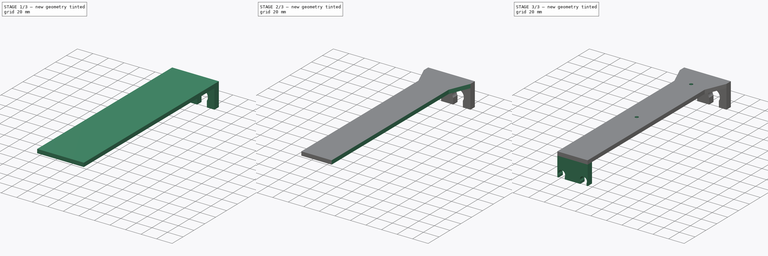
[diagram: build sequence overview — one tinted view per stage of 3, left to right]
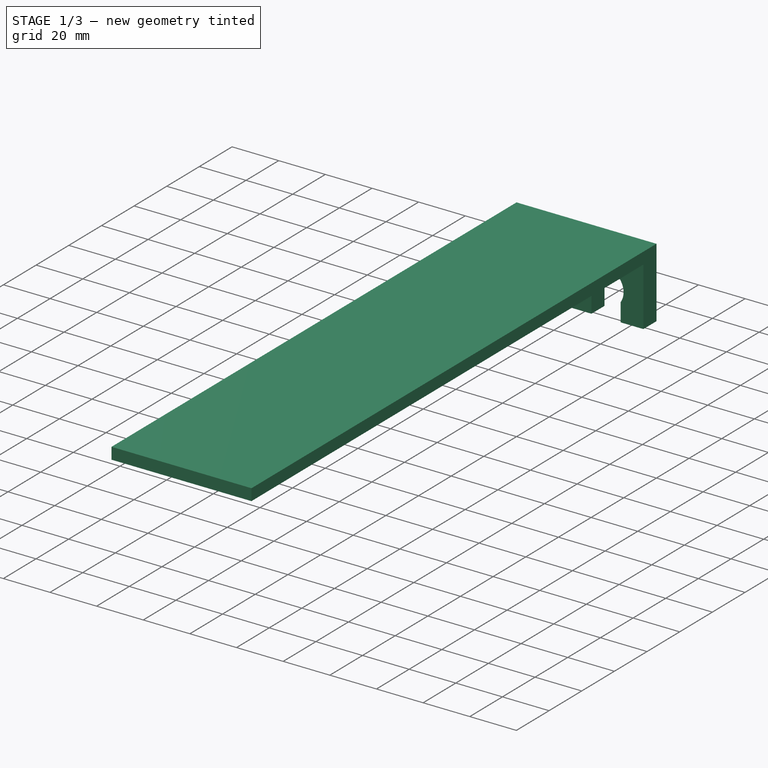
[diagram: stage 1 of 3 — iso view after this stage's code; geometry added in this stage tinted green]
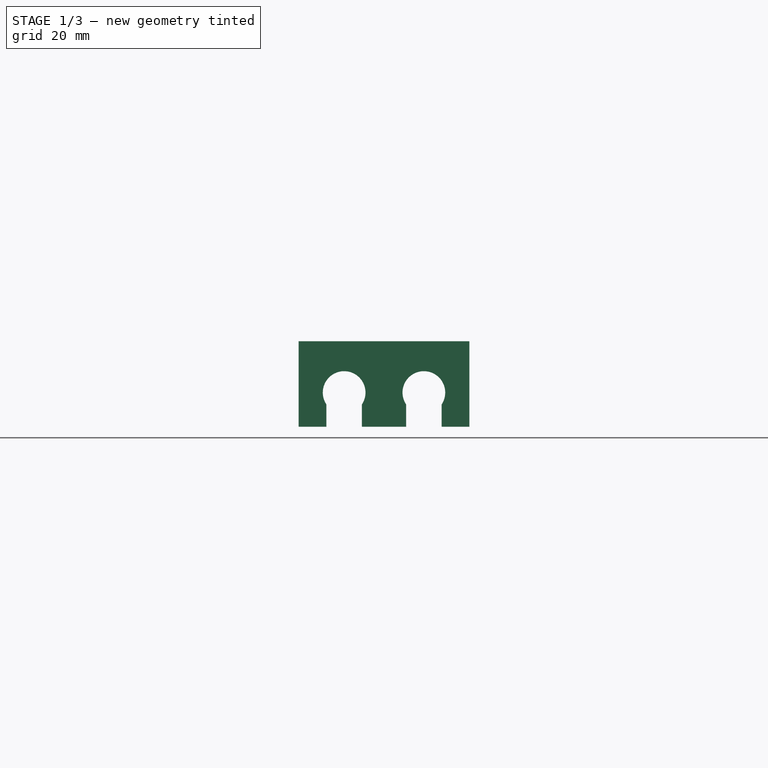
[diagram: stage 1 of 3 — front view after this stage's code; geometry added in this stage tinted green]
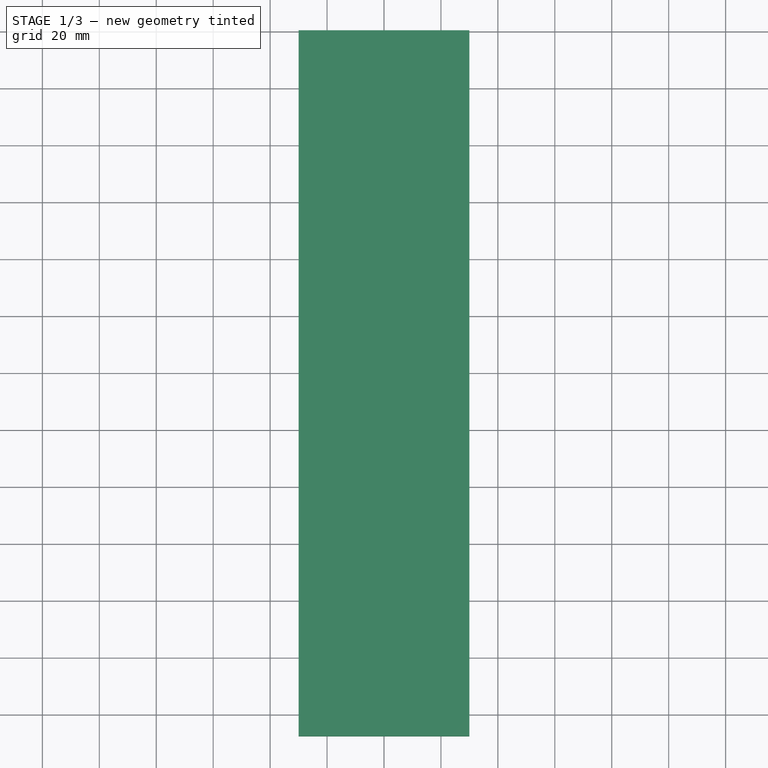
[diagram: stage 1 of 3 — top view after this stage's code; geometry added in this stage tinted green]
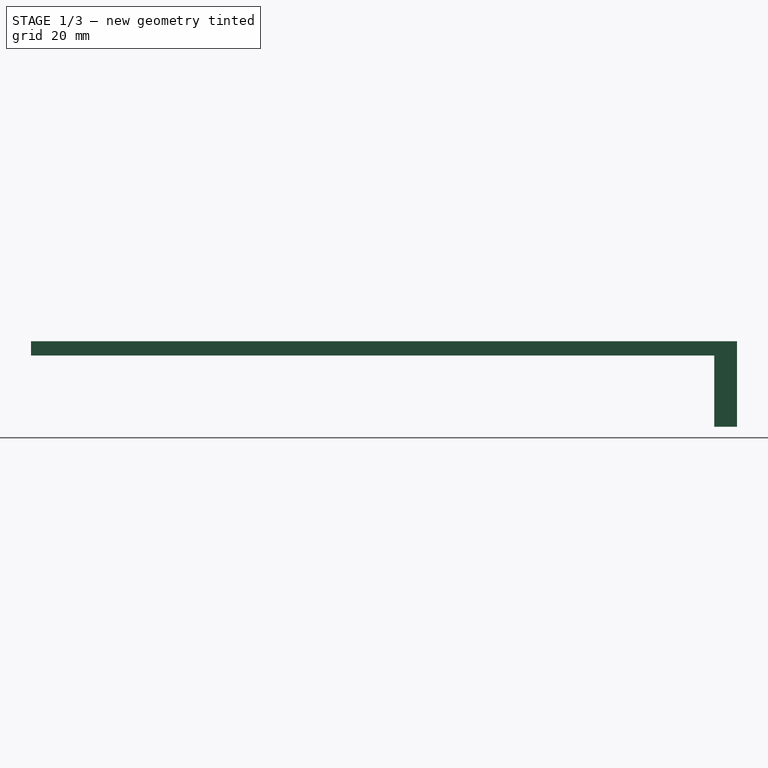
[diagram: stage 1 of 3 — right view after this stage's code; geometry added in this stage tinted green]
FCSTD DOCUMENT  (FreeCAD 0.18R4 (GitTag))
Label: soporte_dremel_extension
License: All rights reserved
LicenseURL: http://en.wikipedia.org/wiki/All_rights_reserved
objects: Sketcher::SketchObject×6, PartDesign::Pad×3, PartDesign::Pocket×2, PartDesign::Hole×1, PartDesign::Body×1, Part::FeaturePython×1, App::FeaturePython×1
note: 20 computed .brp shape members not serialized (recipe doc carries the construction recipe); baked Part::Feature solids carry a one-line shape summary decoded from their .brp

FEATURE [Sketcher::SketchObject] Sketch
  MapMode = 5
  Placement = pos=(0,0,0) rot=(1,0,0;1.5708rad)
  Support = -> [XZ_Plane]
  sketch-geometry (15):
    g0: LineSegment StartX=-30 StartY=0 StartZ=0 EndX=30 EndY=0 EndZ=0
    g1: LineSegment StartX=30 StartY=0 StartZ=0 EndX=30 EndY=-30 EndZ=0
    g2: LineSegment StartX=30 StartY=-30 StartZ=0 EndX=20.25 EndY=-30 EndZ=0
    g3: LineSegment StartX=-30 StartY=-30 StartZ=0 EndX=-30 EndY=0 EndZ=0
    g4: LineSegment [constr] StartX=-14 StartY=12 StartZ=0 EndX=-14 EndY=-48 EndZ=0
    g5: LineSegment [constr] StartX=14 StartY=12 StartZ=0 EndX=14 EndY=-48 EndZ=0
    g6: ArcOfCircle CenterX=-14 CenterY=-18 CenterZ=0 NormalX=0 NormalY=0 NormalZ=1 AngleXU=0 Radius=7.5 StartAngle=5.6975 EndAngle=10.0105
    g7: ArcOfCircle CenterX=14 CenterY=-18 CenterZ=0 NormalX=0 NormalY=0 NormalZ=1 AngleXU=0 Radius=7.5 StartAngle=5.6975 EndAngle=10.0105
    g8: Circle [constr] CenterX=-14 CenterY=-18 CenterZ=0 NormalX=0 NormalY=0 NormalZ=1 AngleXU=0 Radius=11
    g9: LineSegment StartX=-20.25 StartY=-22.1458 StartZ=0 EndX=-20.25 EndY=-30 EndZ=0
    g10: LineSegment StartX=-7.75 StartY=-22.1458 StartZ=0 EndX=-7.75 EndY=-30 EndZ=0
    g11: LineSegment StartX=7.75 StartY=-22.1458 StartZ=0 EndX=7.75 EndY=-30 EndZ=0
    g12: LineSegment StartX=20.25 StartY=-22.1458 StartZ=0 EndX=20.25 EndY=-30 EndZ=0
    g13: LineSegment StartX=-20.25 StartY=-30 StartZ=0 EndX=-30 EndY=-30 EndZ=0
    g14: LineSegment StartX=7.75 StartY=-30 StartZ=0 EndX=-7.75 EndY=-30 EndZ=0
  constraints (42):
    c: Coincident(g0,g1)
    c: Coincident(g1,g2)
    c: Coincident(g13,g3)
    c: Coincident(g3,g0)
    c: Horizontal(g0)
    c: Horizontal(g2)
    c: Vertical(g1)
    c: Vertical(g3)
    c: Symmetric(g0,g0,g-1)
    c: DistanceX(g0,g0) = 60
    c: DistanceY(g3,g3) = 30
    c: Vertical(g4)
    c: Vertical(g5)
    c: Symmetric(g4,g5,g-2)
    c: DistanceX(g4,g5) = 28
    c: Equal(g4,g5)
    c: DistanceY(g5,g5) = 60
    c: DistanceY(g-1,g5) = 12
    c: Diameter(g6) = 15
    c: Equal(g6,g7)
    c: DistanceY(g13,g6) = 12
    c: Coincident(g8,g6)
    c: Diameter(g8) = 22
    c: DistanceY(g7,g6) = 0
    c: Vertical(g9)
    c: Vertical(g10)
    c: Vertical(g11)
    c: Vertical(g12)
    c: Coincident(g9,g6)
    c: Coincident(g10,g6)
    c: Coincident(g13,g9)
    c: Tangent(g2,g13)
    c: Coincident(g10,g14)
    c: Coincident(g14,g11)
    c: Tangent(g2,g14)
    c: Coincident(g11,g7)
    c: Coincident(g7,g12)
    c: Coincident(g12,g2)
    c: Symmetric(g6,g6,g4)
    c: DistanceX(g6,g6) = 12.5
    c: Symmetric(g7,g7,g5)
    c: DistanceX(g7,g7) = 12.5
FEATURE [PartDesign::Pad] Pad
  Length = 8
  Length2 = 100
  Placement = pos=(0,0,0) rot=(1,0,0;1.5708rad)
  Profile = -> Sketch
  Type = 0
FEATURE [Sketcher::SketchObject] Sketch001
  ExternalGeometry = -> [Pad]
  MapMode = 5
  Placement = pos=(0,-8,5.3e-15) rot=(1,0,0;1.5708rad)
  Support = -> [Pad]
  sketch-geometry (4):
    g0: LineSegment StartX=-30 StartY=0 StartZ=0 EndX=30 EndY=0 EndZ=0
    g1: LineSegment StartX=30 StartY=0 StartZ=0 EndX=30 EndY=-5 EndZ=0
    g2: LineSegment StartX=30 StartY=-5 StartZ=0 EndX=-30 EndY=-5 EndZ=0
    g3: LineSegment StartX=-30 StartY=-5 StartZ=0 EndX=-30 EndY=0 EndZ=0
  constraints (10):
    c: Coincident(g0,g1)
    c: Coincident(g1,g2)
    c: Coincident(g2,g3)
    c: Coincident(g3,g0)
    c: Horizontal(g2)
    c: Vertical(g1)
    c: Vertical(g3)
    c: Coincident(g0,g-5)
    c: Coincident(g0,g-5)
    c: DistanceY(g3,g3) = 5
FEATURE [PartDesign::Pad] Pad001
  BaseFeature = -> Pad
  Length = 240
  Length2 = 100
  Placement = pos=(0,0,0) rot=(1,0,0;1.5708rad)
  Profile = -> Sketch001
  Type = 0
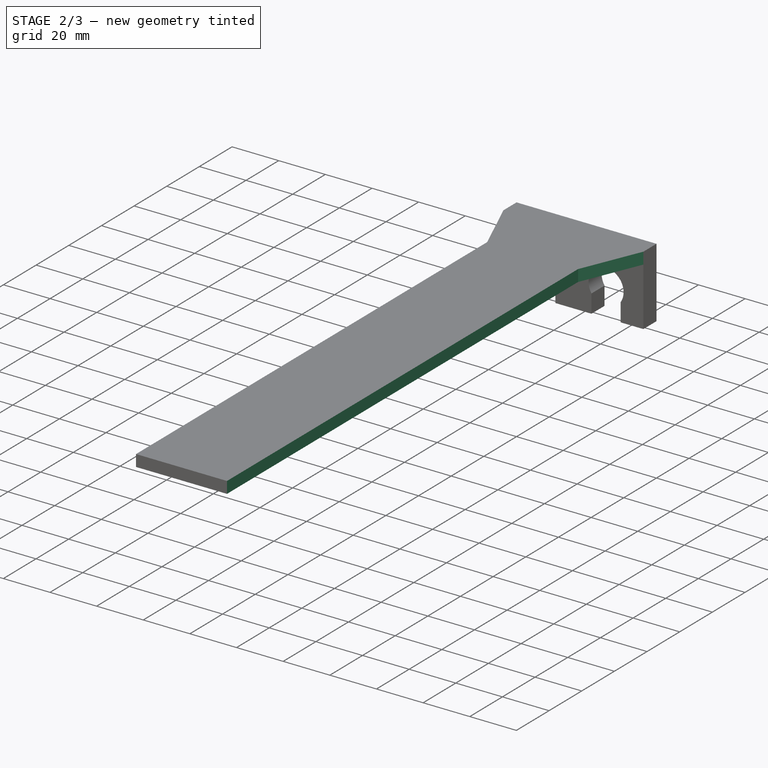
[diagram: stage 2 of 3 — iso view after this stage's code; geometry added in this stage tinted green]
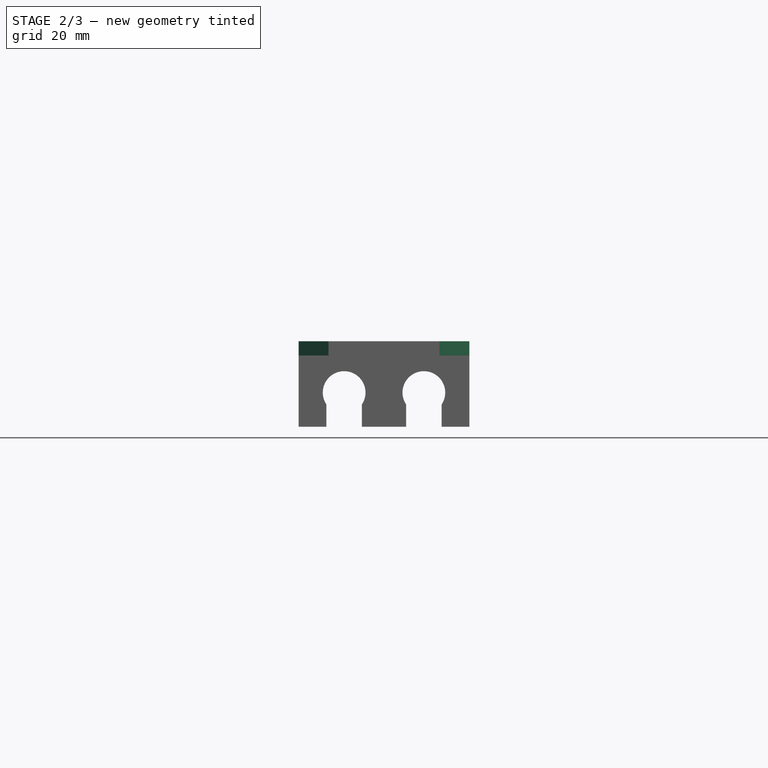
[diagram: stage 2 of 3 — front view after this stage's code; geometry added in this stage tinted green]
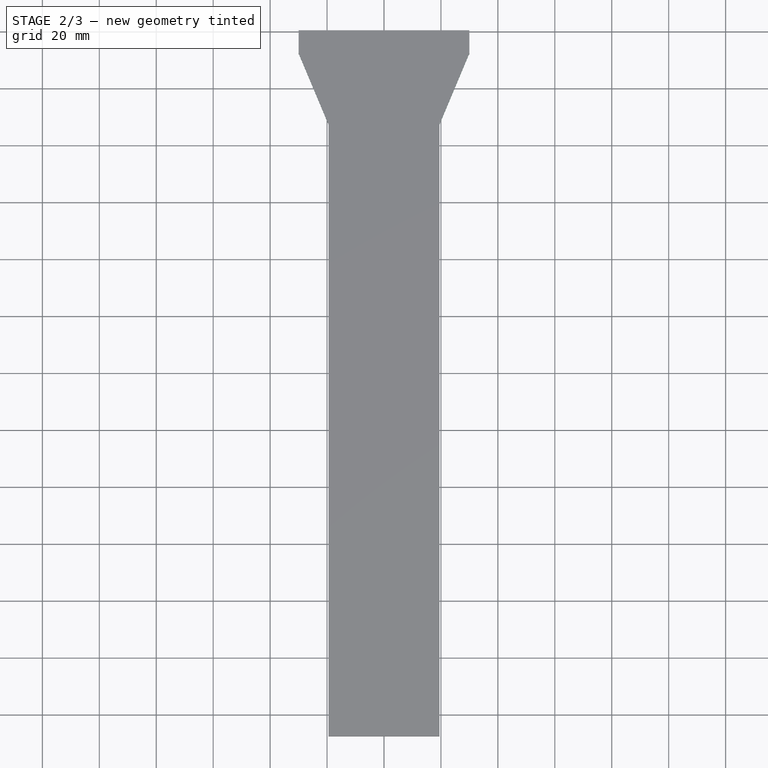
[diagram: stage 2 of 3 — top view after this stage's code; geometry added in this stage tinted green]
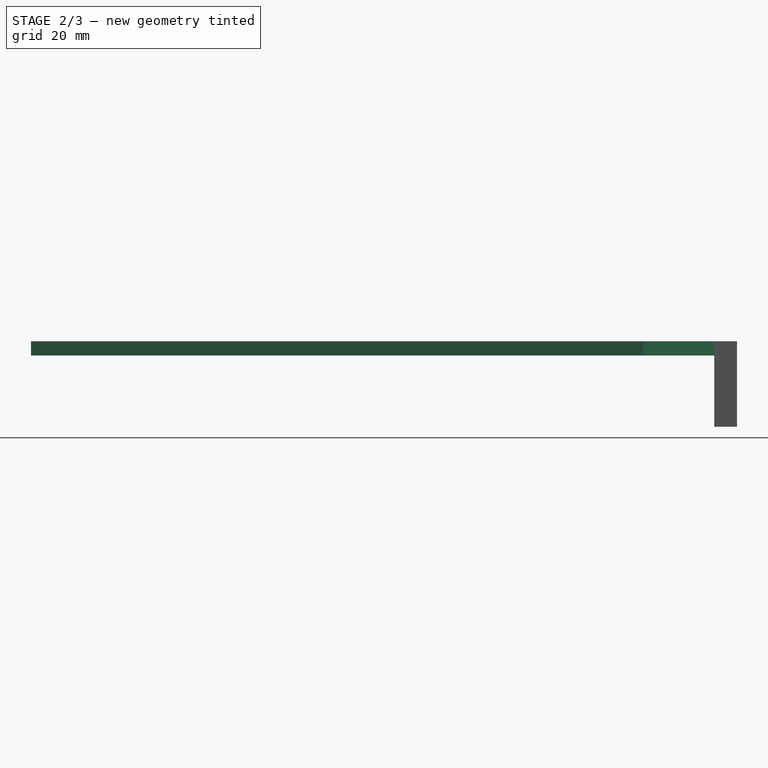
[diagram: stage 2 of 3 — right view after this stage's code; geometry added in this stage tinted green]
FEATURE [Sketcher::SketchObject] Sketch002
  ExternalGeometry = -> [Pad001]
  MapMode = 5
  Placement = pos=(0,-5.8e-15,-5) rot=(1,0,0;3.14159rad)
  Support = -> [Pad001]
  sketch-geometry (4):
    g0: LineSegment StartX=-19.5 StartY=251 StartZ=0 EndX=-33 EndY=251 EndZ=0
    g1: LineSegment StartX=-33 StartY=251 StartZ=0 EndX=-33 EndY=0.857143 EndZ=0
    g2: LineSegment StartX=-33 StartY=0.857143 StartZ=0 EndX=-19.5 EndY=33 EndZ=0
    g3: LineSegment StartX=-19.5 StartY=33 StartZ=0 EndX=-19.5 EndY=251 EndZ=0
  constraints (12):
    c: Horizontal(g0)
    c: Coincident(g0,g1)
    c: Vertical(g1)
    c: Coincident(g1,g2)
    c: Coincident(g2,g3)
    c: Vertical(g3)
    c: Coincident(g0,g3)
    c: DistanceX(g0,g-1) = 19.5
    c: PointOnObject(g-3,g2)
    c: DistanceY(g-3,g2) = 25
    c: DistanceY(g-4,g0) = 3
    c: DistanceX(g0,g-4) = 3
FEATURE [PartDesign::Pocket] Pocket
  BaseFeature = -> Pad001
  Length = 5
  Length2 = 100
  Placement = pos=(0,0,0) rot=(1,0,0;1.5708rad)
  Profile = -> Sketch002
  Type = 1
FEATURE [Sketcher::SketchObject] Sketch003
  ExternalGeometry = -> [Pocket]
  MapMode = 5
  Placement = pos=(0,-8e-15,-5) rot=(1,0,0;3.14159rad)
  Support = -> [Pocket]
  sketch-geometry (4):
    g0: LineSegment StartX=19.5 StartY=251 StartZ=0 EndX=33 EndY=251 EndZ=0
    g1: LineSegment StartX=33 StartY=251 StartZ=0 EndX=33 EndY=0.857143 EndZ=0
    g2: LineSegment StartX=33 StartY=0.857143 StartZ=0 EndX=19.5 EndY=33 EndZ=0
    g3: LineSegment StartX=19.5 StartY=33 StartZ=0 EndX=19.5 EndY=251 EndZ=0
  constraints (12):
    c: Horizontal(g0)
    c: Coincident(g0,g1)
    c: Vertical(g1)
    c: Coincident(g1,g2)
    c: Coincident(g2,g3)
    c: Coincident(g3,g0)
    c: Vertical(g3)
    c: DistanceY(g-3,g0) = 3
    c: DistanceX(g-3,g0) = 3
    c: DistanceX(g-1,g0) = 19.5
    c: DistanceY(g-4,g2) = 25
    c: PointOnObject(g-4,g2)
FEATURE [PartDesign::Pocket] Pocket001
  BaseFeature = -> Pocket
  Length = 5
  Length2 = 100
  Placement = pos=(0,0,0) rot=(1,0,0;1.5708rad)
  Profile = -> Sketch003
  Type = 1
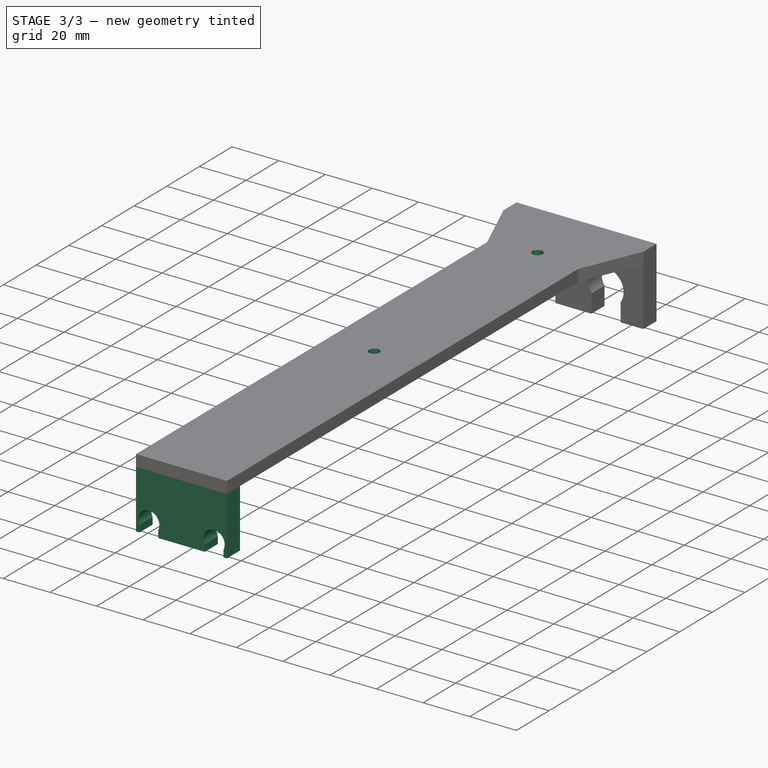
[diagram: stage 3 of 3 — iso view after this stage's code; geometry added in this stage tinted green]
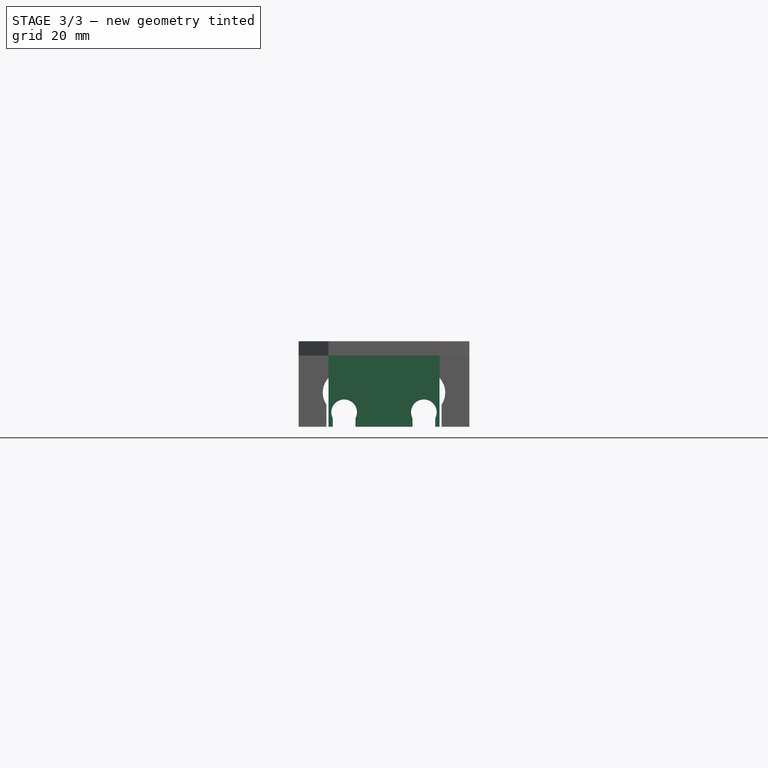
[diagram: stage 3 of 3 — front view after this stage's code; geometry added in this stage tinted green]
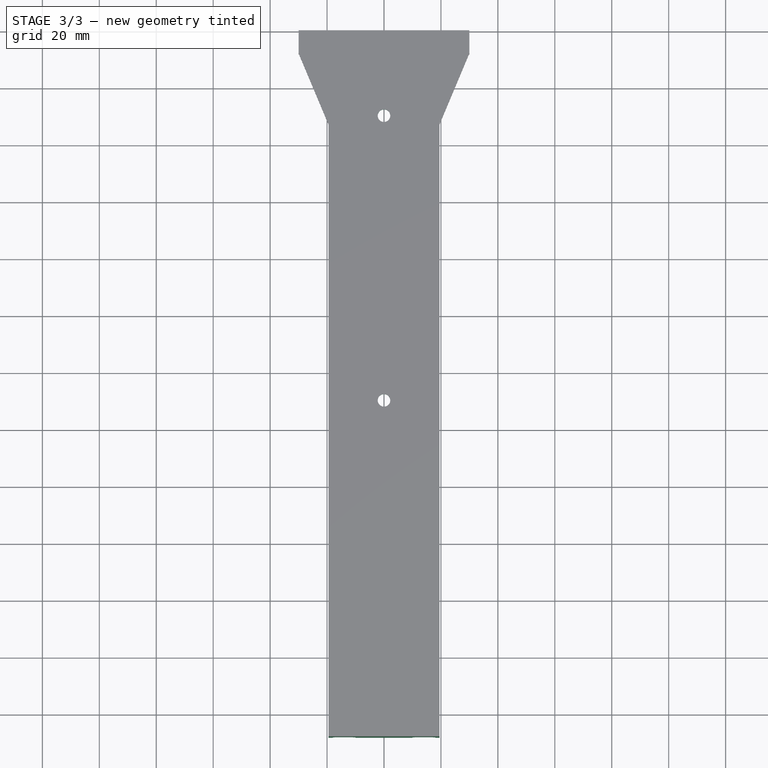
[diagram: stage 3 of 3 — top view after this stage's code; geometry added in this stage tinted green]
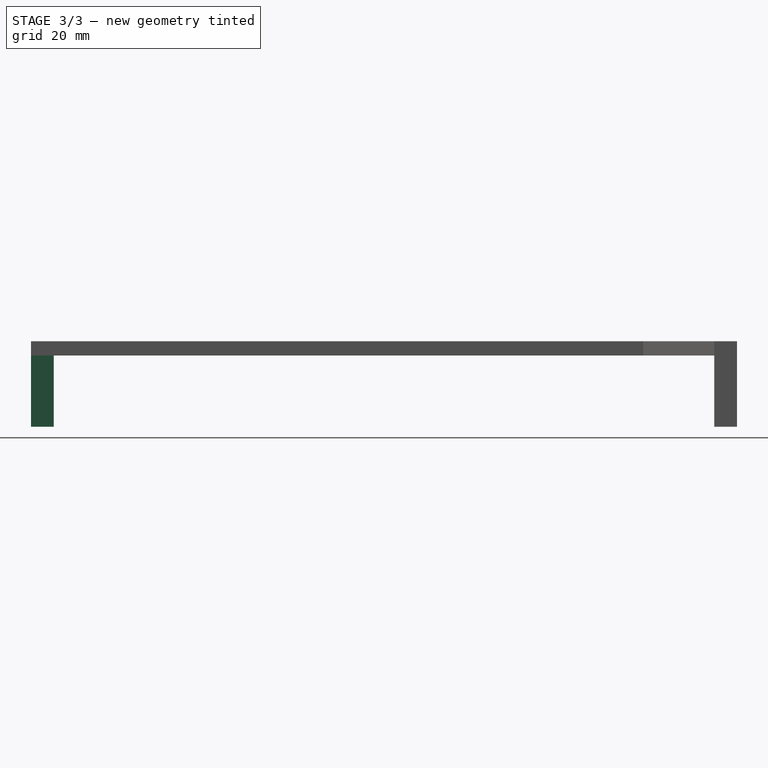
[diagram: stage 3 of 3 — right view after this stage's code; geometry added in this stage tinted green]
FEATURE [Sketcher::SketchObject] Sketch004
  ExternalGeometry = -> [Pocket001]
  MapMode = 5
  Placement = pos=(0,-248,5.507e-13) rot=(1,0,0;1.5708rad)
  Support = -> [Pocket001]
  sketch-geometry (14):
    g0: LineSegment StartX=-19.5 StartY=-4.26e-14 StartZ=0 EndX=19.5 EndY=-4.17e-14 EndZ=0
    g1: LineSegment StartX=19.5 StartY=-4.17e-14 StartZ=0 EndX=19.5 EndY=-30 EndZ=0
    g2: LineSegment StartX=19.5 StartY=-30 StartZ=0 EndX=18 EndY=-30 EndZ=0
    g3: LineSegment StartX=-19.5 StartY=-30 StartZ=0 EndX=-19.5 EndY=-4.26e-14 EndZ=0
    g4: LineSegment [constr] StartX=-14 StartY=-4.17e-14 StartZ=0 EndX=-14 EndY=-30 EndZ=0
    g5: LineSegment [constr] StartX=14 StartY=-4.17e-14 StartZ=0 EndX=14 EndY=-30 EndZ=0
    g6: ArcOfCircle CenterX=-14 CenterY=-24.9384 CenterZ=0 NormalX=0 NormalY=0 NormalZ=1 AngleXU=0 Radius=4.5 StartAngle=5.8073 EndAngle=9.90066
    g7: ArcOfCircle CenterX=14 CenterY=-24.9384 CenterZ=0 NormalX=0 NormalY=0 NormalZ=1 AngleXU=0 Radius=4.5 StartAngle=5.8073 EndAngle=9.90066
    g8: LineSegment StartX=-18 StartY=-27 StartZ=0 EndX=-18 EndY=-30 EndZ=0
    g9: LineSegment StartX=-10 StartY=-27 StartZ=0 EndX=-10 EndY=-30 EndZ=0
    g10: LineSegment StartX=10 StartY=-27 StartZ=0 EndX=10 EndY=-30 EndZ=0
    g11: LineSegment StartX=18 StartY=-27 StartZ=0 EndX=18 EndY=-30 EndZ=0
    g12: LineSegment StartX=-18 StartY=-30 StartZ=0 EndX=-19.5 EndY=-30 EndZ=0
    g13: LineSegment StartX=10 StartY=-30 StartZ=0 EndX=-10 EndY=-30 EndZ=0
  constraints (39):
    c: Coincident(g0,g1)
    c: Coincident(g1,g2)
    c: Coincident(g12,g3)
    c: Coincident(g3,g0)
    c: Horizontal(g2)
    c: Vertical(g1)
    c: Vertical(g3)
    c: Symmetric(g0,g0,g-2)
    c: Coincident(g0,g-3)
    c: DistanceY(g12,g-4) = 0
    c: PointOnObject(g4,g0)
    c: Vertical(g4)
    c: Vertical(g5)
    c: Equal(g4,g5)
    c: Symmetric(g4,g5,g-2)
    c: DistanceX(g4,g5) = 28
    c: Diameter(g6) = 9
    c: Equal(g6,g7)
    c: DistanceY(g7,g6) = 0
    c: Vertical(g8)
    c: Vertical(g9)
    c: Vertical(g10)
    c: Vertical(g11)
    c: Coincident(g12,g8)
    c: Tangent(g2,g12)
    c: Coincident(g9,g13)
    c: Coincident(g6,g9)
    c: Symmetric(g6,g6,g4)
    c: DistanceX(g6,g6) = 8
    c: Tangent(g2,g13)
    c: Coincident(g10,g13)
    c: Coincident(g11,g2)
    c: Coincident(g7,g11)
    c: Symmetric(g7,g7,g5)
    c: DistanceX(g10,g7) = 8
    c: Coincident(g6,g8)
    c: Coincident(g7,g10)
    c: DistanceY(g10,g10) = 3
    c: DistanceY(g4,g8) = 0
FEATURE [PartDesign::Pad] Pad002
  BaseFeature = -> Pocket001
  Length = 8
  Length2 = 100
  Placement = pos=(0,0,0) rot=(1,0,0;1.5708rad)
  Profile = -> Sketch004
  Reversed = true
  Type = 0
FEATURE [Sketcher::SketchObject] Sketch005
  MapMode = 5
  Placement = pos=(0,-1.25e-14,-5) rot=(1,0,0;3.14159rad)
  Support = -> [Pad002]
  sketch-geometry (2):
    g0: Circle CenterX=0 CenterY=30 CenterZ=0 NormalX=0 NormalY=0 NormalZ=1 AngleXU=0 Radius=2
    g1: Circle CenterX=0 CenterY=130 CenterZ=0 NormalX=0 NormalY=0 NormalZ=1 AngleXU=0 Radius=2
  constraints (6):
    c: PointOnObject(g0,g-2)
    c: PointOnObject(g1,g-2)
    c: Equal(g0,g1)
    c: DistanceY(g0,g1) = 100
    c: DistanceY(g-1,g0) = 30
    c: Diameter(g1) = 4
FEATURE [PartDesign::Hole] Hole
  BaseFeature = -> Pad002
  Depth = 25
  DepthType = 1
  Diameter = 4.4
  DrillPoint = 0
  DrillPointAngle = 118
  HoleCutCountersinkAngle = 90
  HoleCutDepth = 0
  HoleCutDiameter = 8
  HoleCutType = 2
  ModelActualThread = false
  Placement = pos=(0,0,0) rot=(1,0,0;1.5708rad)
  Profile = -> Sketch005
  Tapered = false
  TaperedAngle = 90
  ThreadAngle = 0
  ThreadClass = 0
  ThreadCutOffInner = 0
  ThreadCutOffOuter = 0
  ThreadDirection = 0
  ThreadFit = 0
  ThreadPitch = 0
  ThreadSize = 5
  ThreadType = 1
  Threaded = false
FEATURE [PartDesign::Body] Body
  Group = -> [Sketch,Pad,Sketch001,Pad001,Sketch002,Pocket,Sketch003,Pocket001,Sketch004,Pad002,Sketch005,Hole]
  Origin = -> Origin
  Tip = -> Hole
FEATURE [Part::FeaturePython] Point  label="Center"  # WARN: FeaturePython — macro-defined, semantics opaque (R4)
  X = 0
  Y = -130
  Z = -3.2
FEATURE [App::FeaturePython] Dimension  label="Radius"  # Draft dimension (typed FeaturePython)
  Diameter = false
  Dimline = (-1.1,-130,-3.2)
  Direction = (0,0,0)
  Distance = 2.2
  End = (0,-130,-3.2)
  Normal = (0,0,-1)
  Start = (-2.2,-130,-3.2)
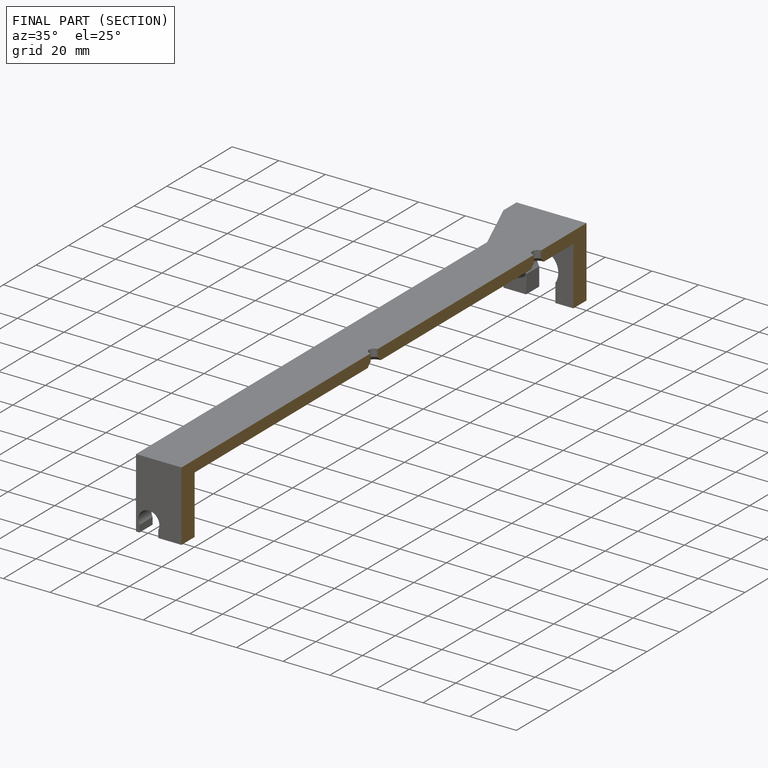
[diagram: finished part — half-section view (interior)]
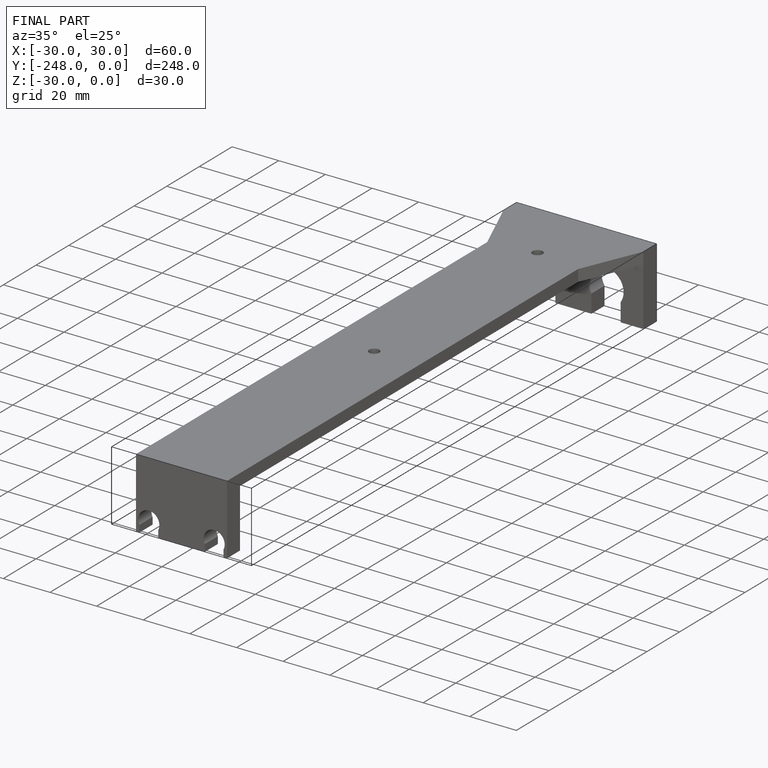
[diagram: finished part — iso view with bounding-box wireframe]
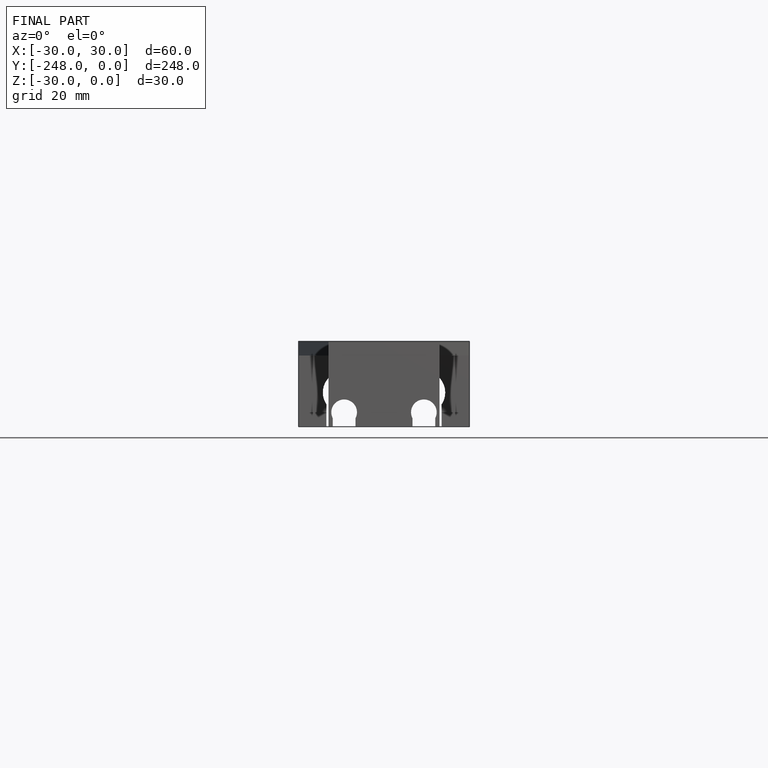
[diagram: finished part — front view with bounding-box wireframe]
